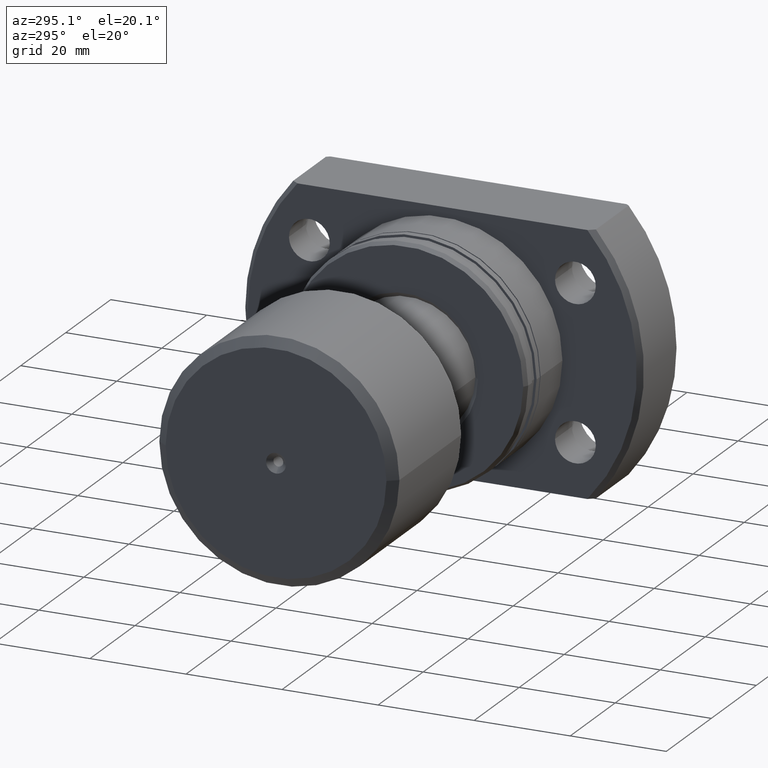
[diagram: clean part render]
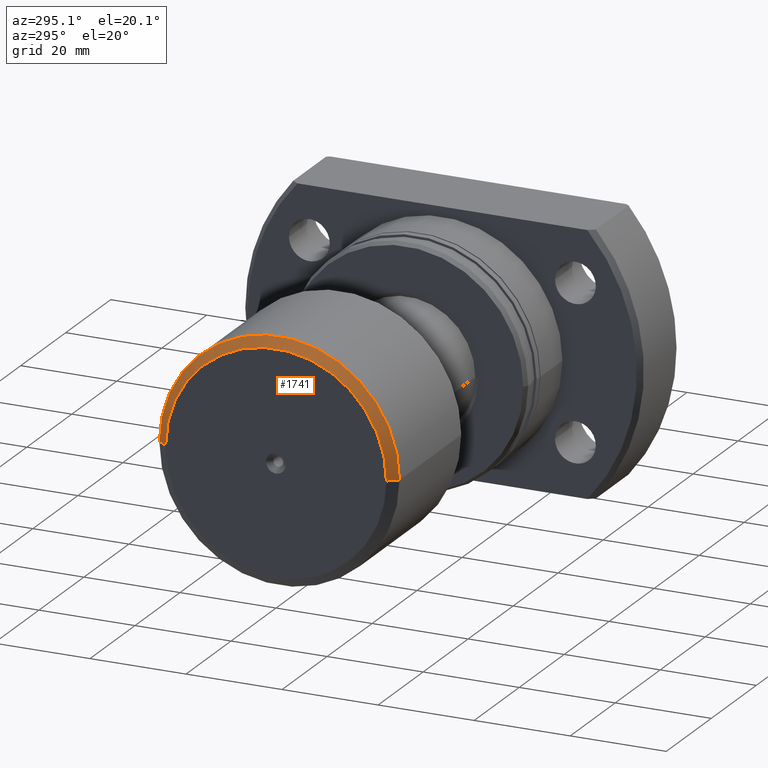
[diagram: same view with one face highlighted and labeled with its STEP entity id]
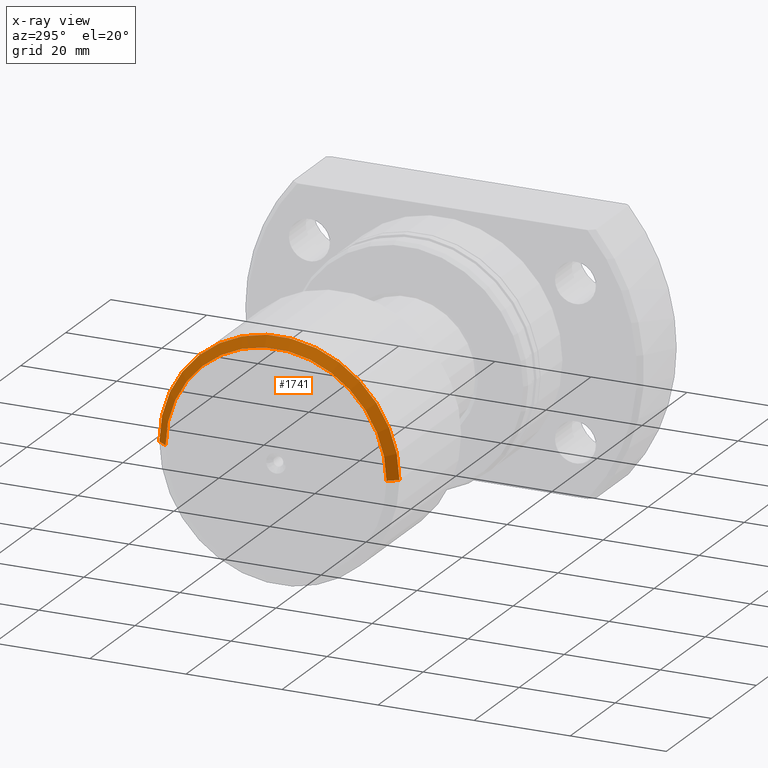
[diagram: x-ray of the same camera — body ghosted, the highlighted face saturated]
A machine part, auxiliary view. The second image highlights one B-rep face of the part: STEP entity #1741.
The next image is the same camera in x-ray: the body ghosted, the highlighted face saturated — about 0% of this face is hidden behind the body in this view.
In plain terms, the highlighted conical surface has half-angle 53.13 deg.
Its self-contained STEP definition (entity closure, byte-faithful):
#166 = DIRECTION ( 'NONE',  ( 0.5999999999999997558, -0.8000000000000001554, 9.797174393178827383E-17 ) ) ;
#180 = CARTESIAN_POINT ( 'NONE',  ( 2.816687638038912352E-15, -23.00000000000000000, 2.816687638038912352E-15 ) ) ;
#376 = ORIENTED_EDGE ( 'NONE', *, *, #2378, .T. ) ;
#512 = ORIENTED_EDGE ( 'NONE', *, *, #2409, .F. ) ;
#579 = CARTESIAN_POINT ( 'NONE',  ( 2.324698169887142426E-15, 23.00000000000000000, 0.000000000000000000 ) ) ;
#580 = ORIENTED_EDGE ( 'NONE', *, *, #1746, .F. ) ;
#605 = CONICAL_SURFACE ( 'NONE', #2743, 23.00000000000000000, 0.9272952180016125201 ) ;
#675 = ORIENTED_EDGE ( 'NONE', *, *, #2696, .T. ) ;
#866 = FACE_OUTER_BOUND ( 'NONE', #1418, .T. ) ;
#1098 = DIRECTION ( 'NONE',  ( 1.000000000000000000, 1.069542322069065801E-17, 0.000000000000000000 ) ) ;
#1200 = CARTESIAN_POINT ( 'NONE',  ( 2.570692903963027191E-15, 2.749464857831086545E-32, 0.000000000000000000 ) ) ;
#1214 = DIRECTION ( 'NONE',  ( -1.000000000000000000, -1.069542322069065801E-17, -0.000000000000000000 ) ) ;
#1325 = DIRECTION ( 'NONE',  ( -1.000000000000000000, -1.069542322069065801E-17, -0.000000000000000000 ) ) ;
#1331 = DIRECTION ( 'NONE',  ( 0.5999999999999997558, 0.8000000000000001554, 0.000000000000000000 ) ) ;
#1364 = CARTESIAN_POINT ( 'NONE',  ( 1.500000000000003331, -25.00000000000000000, 3.061616997868383043E-15 ) ) ;
#1418 = EDGE_LOOP ( 'NONE', ( #512, #376, #675, #580 ) ) ;
#1537 = VERTEX_POINT ( 'NONE', #1795 ) ;
#1547 = AXIS2_PLACEMENT_3D ( 'NONE', #1807, #1325, #2829 ) ;
#1621 = DIRECTION ( 'NONE',  ( -1.069542322069065339E-17, 1.000000000000000000, 0.000000000000000000 ) ) ;
#1666 = VERTEX_POINT ( 'NONE', #579 ) ;
#1699 = VERTEX_POINT ( 'NONE', #1364 ) ;
#1741 = ADVANCED_FACE ( 'NONE', ( #866 ), #605, .T. ) ;
#1746 = EDGE_CURVE ( 'NONE', #1666, #2286, #1861, .T. ) ;
#1795 = CARTESIAN_POINT ( 'NONE',  ( 2.816687638038912352E-15, -23.00000000000000000, 2.939152317953647894E-15 ) ) ;
#1807 = CARTESIAN_POINT ( 'NONE',  ( 1.500000000000003109, 1.604313483103602168E-17, 0.000000000000000000 ) ) ;
#1844 = VECTOR ( 'NONE', #1331, 1000.000000000000000 ) ;
#1861 = LINE ( 'NONE', #2868, #1844 ) ;
#2286 = VERTEX_POINT ( 'NONE', #2396 ) ;
#2324 = VECTOR ( 'NONE', #166, 1000.000000000000000 ) ;
#2378 = EDGE_CURVE ( 'NONE', #1537, #1699, #2648, .T. ) ;
#2396 = CARTESIAN_POINT ( 'NONE',  ( 1.500000000000002887, 25.00000000000000000, 0.000000000000000000 ) ) ;
#2409 = EDGE_CURVE ( 'NONE', #1537, #1666, #2806, .T. ) ;
#2602 = CARTESIAN_POINT ( 'NONE',  ( 2.570692903963027191E-15, 2.749464857831086545E-32, 0.000000000000000000 ) ) ;
#2648 = LINE ( 'NONE', #180, #2324 ) ;
#2696 = EDGE_CURVE ( 'NONE', #1699, #2286, #3115, .T. ) ;
#2712 = DIRECTION ( 'NONE',  ( 1.069542322069065339E-17, -1.000000000000000000, 0.000000000000000000 ) ) ;
#2743 = AXIS2_PLACEMENT_3D ( 'NONE', #2602, #1098, #1621 ) ;
#2749 = AXIS2_PLACEMENT_3D ( 'NONE', #1200, #1214, #2712 ) ;
#2806 = CIRCLE ( 'NONE', #2749, 23.00000000000000000 ) ;
#2829 = DIRECTION ( 'NONE',  ( 8.673617379884035472E-18, -1.000000000000000000, 0.000000000000000000 ) ) ;
#2868 = CARTESIAN_POINT ( 'NONE',  ( 2.324698169887142426E-15, 23.00000000000000000, 0.000000000000000000 ) ) ;
#3115 = CIRCLE ( 'NONE', #1547, 25.00000000000000000 ) ;